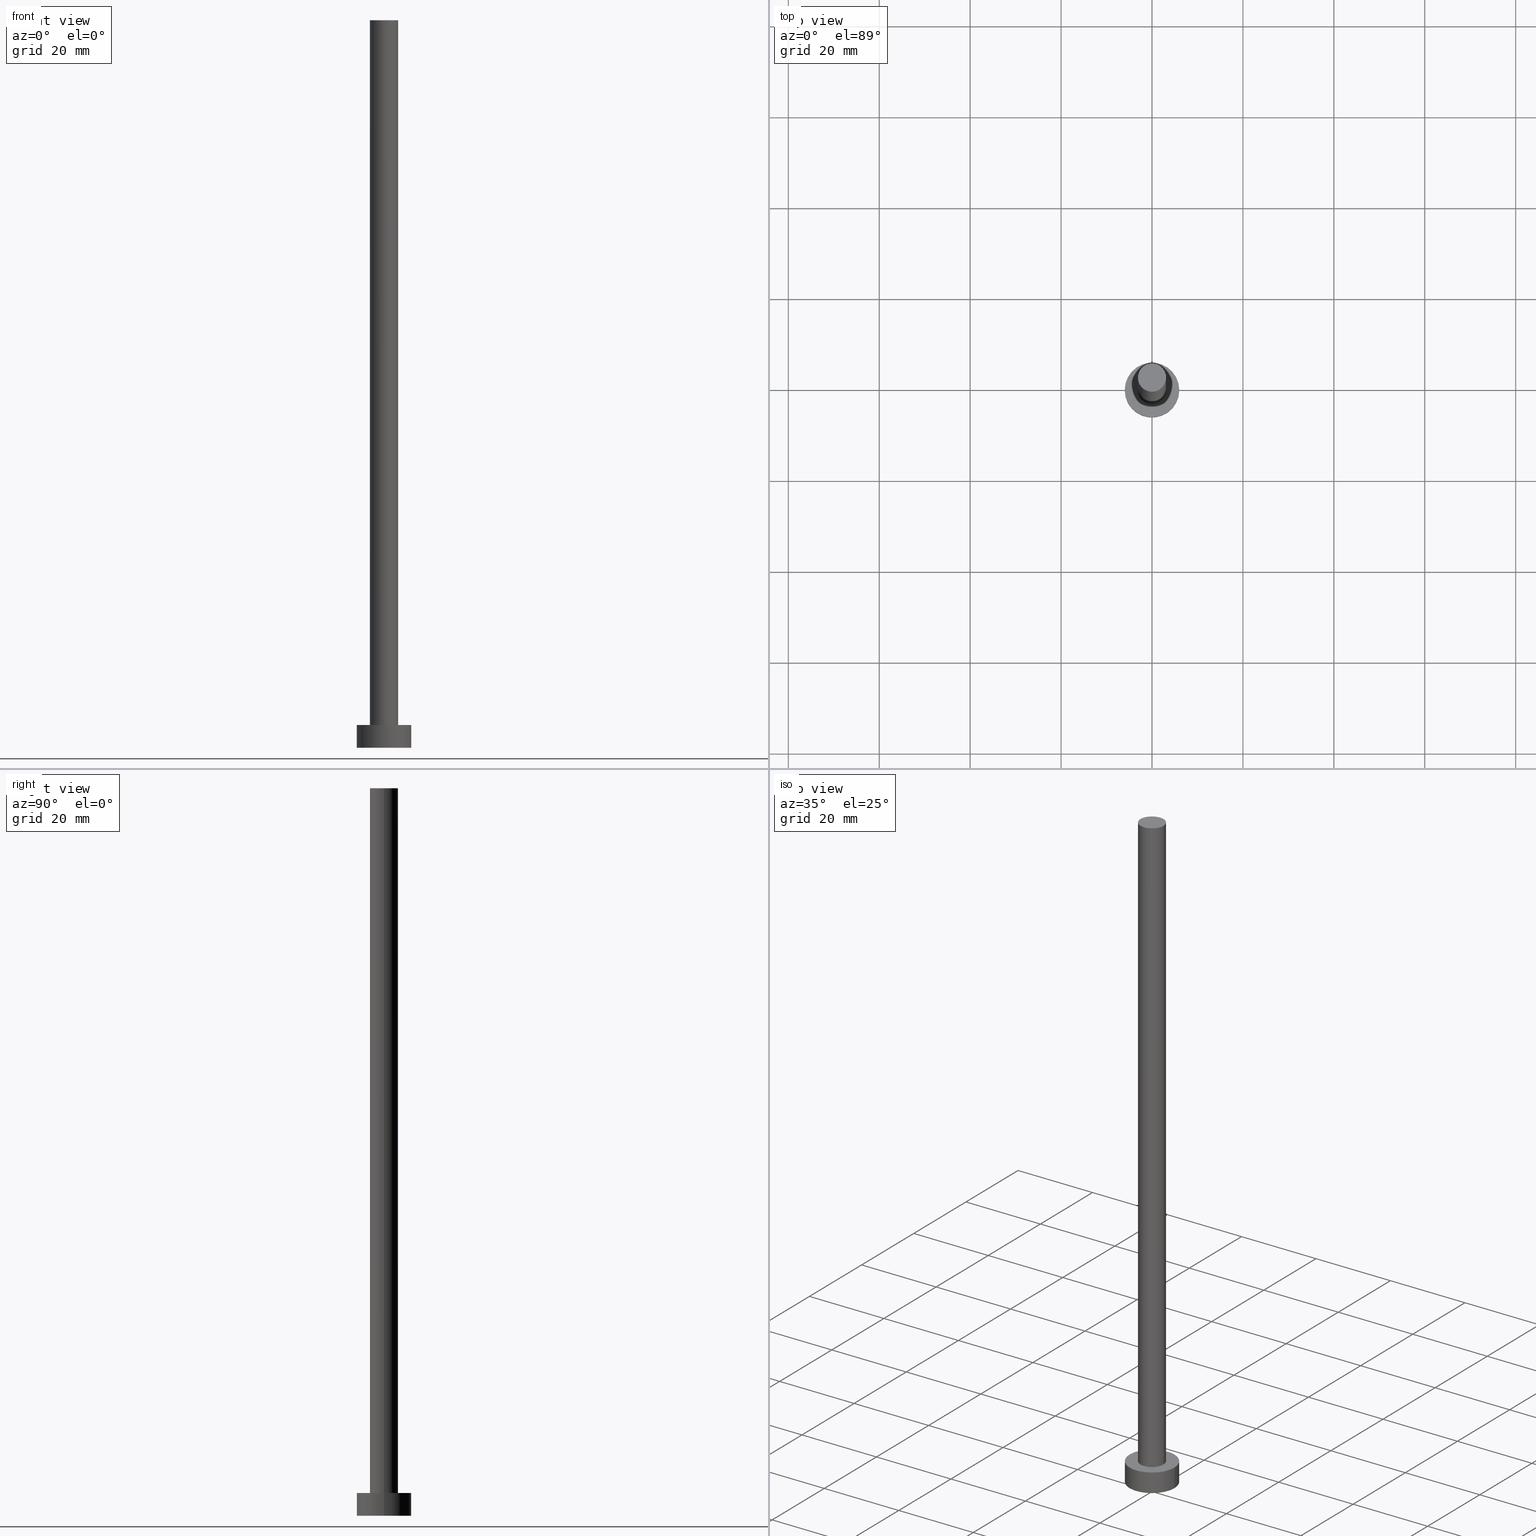
[diagram: canonical four-view strip — front | top / right | iso, engineering-drawing reading convention]
A machine part, canonical four-view strip (front | top / right | iso — engineering-drawing reading convention). The complete STEP part file that produces these views, byte-faithful:
ISO-10303-21;
HEADER;
FILE_DESCRIPTION (( 'STEP AP203' ),
    '1' );
FILE_NAME ('dda0.STEP',
    '2023-02-13T15:20:46',
    ( '' ),
    ( '' ),
    'SwSTEP 2.0',
    'SolidWorks 2019',
    '' );
FILE_SCHEMA (( 'CONFIG_CONTROL_DESIGN' ));
ENDSEC;

DATA;
#1 = APPROVAL_ROLE ( '' ) ;
#2 = PERSON_AND_ORGANIZATION ( #157, #62 ) ;
#3 = AXIS2_PLACEMENT_3D ( 'NONE', #29, #26, #70 ) ;
#4 = APPROVAL_ROLE ( '' ) ;
#5 = EDGE_CURVE ( 'NONE', #246, #133, #34, .T. ) ;
#6 =( GEOMETRIC_REPRESENTATION_CONTEXT ( 3 ) GLOBAL_UNCERTAINTY_ASSIGNED_CONTEXT ( ( #210 ) ) GLOBAL_UNIT_ASSIGNED_CONTEXT ( ( #18, #234, #36 ) ) REPRESENTATION_CONTEXT ( 'NONE', 'WORKASPACE' ) );
#7 = PRODUCT ( 'dda0', 'dda0', '', ( #94 ) ) ;
#8 = AXIS2_PLACEMENT_3D ( 'NONE', #66, #68, #9 ) ;
#9 = DIRECTION ( 'NONE',  ( 1.000000000000000000, 0.000000000000000000, -0.000000000000000000 ) ) ;
#10 = DIRECTION ( 'NONE',  ( 0.000000000000000000, 0.000000000000000000, 1.000000000000000000 ) ) ;
#11 = CARTESIAN_POINT ( 'NONE',  ( 6.000000000000000888, 7.347880794884120722E-16, 5.000000000000000000 ) ) ;
#12 = VERTEX_POINT ( 'NONE', #207 ) ;
#13 = AXIS2_PLACEMENT_3D ( 'NONE', #88, #173, #236 ) ;
#14 = DESIGN_CONTEXT ( 'detailed design', #79, 'design' ) ;
#15 = DIRECTION ( 'NONE',  ( 1.000000000000000000, 0.000000000000000000, 0.000000000000000000 ) ) ;
#16 = VERTEX_POINT ( 'NONE', #190 ) ;
#17 = CARTESIAN_POINT ( 'NONE',  ( 0.000000000000000000, 0.000000000000000000, 5.000000000000000000 ) ) ;
#18 =( LENGTH_UNIT ( ) NAMED_UNIT ( * ) SI_UNIT ( .MILLI., .METRE. ) );
#19 = ORIENTED_EDGE ( 'NONE', *, *, #39, .T. ) ;
#20 = APPROVAL_DATE_TIME ( #136, #220 ) ;
#21 = PERSON_AND_ORGANIZATION_ROLE ( 'classification_officer' ) ;
#22 = AXIS2_PLACEMENT_3D ( 'NONE', #31, #158, #24 ) ;
#23 = DATE_TIME_ROLE ( 'classification_date' ) ;
#24 = DIRECTION ( 'NONE',  ( -1.000000000000000000, 0.000000000000000000, 0.000000000000000000 ) ) ;
#25 = CIRCLE ( 'NONE', #144, 6.000000000000000888 ) ;
#26 = DIRECTION ( 'NONE',  ( 0.000000000000000000, 0.000000000000000000, 1.000000000000000000 ) ) ;
#27 = CARTESIAN_POINT ( 'NONE',  ( 0.000000000000000000, 0.000000000000000000, 160.0000000000000000 ) ) ;
#28 = ORIENTED_EDGE ( 'NONE', *, *, #44, .T. ) ;
#29 = CARTESIAN_POINT ( 'NONE',  ( 0.000000000000000000, 0.000000000000000000, 0.000000000000000000 ) ) ;
#30 = ORIENTED_EDGE ( 'NONE', *, *, #55, .T. ) ;
#31 = CARTESIAN_POINT ( 'NONE',  ( 0.000000000000000000, 0.000000000000000000, 160.0000000000000000 ) ) ;
#32 = ORIENTED_EDGE ( 'NONE', *, *, #84, .T. ) ;
#33 = FACE_OUTER_BOUND ( 'NONE', #233, .T. ) ;
#34 = LINE ( 'NONE', #128, #203 ) ;
#35 = PERSON_AND_ORGANIZATION ( #157, #62 ) ;
#36 =( NAMED_UNIT ( * ) SI_UNIT ( $, .STERADIAN. ) SOLID_ANGLE_UNIT ( ) );
#37 = PERSON_AND_ORGANIZATION ( #157, #62 ) ;
#38 = EDGE_CURVE ( 'NONE', #154, #246, #61, .T. ) ;
#39 = EDGE_CURVE ( 'NONE', #196, #176, #45, .T. ) ;
#40 = PRODUCT_DEFINITION_FORMATION_WITH_SPECIFIED_SOURCE ( 'LIBOVOLN�', '', #7, .NOT_KNOWN. ) ;
#41 = APPROVAL_ROLE ( '' ) ;
#42 = VECTOR ( 'NONE', #90, 1000.000000000000000 ) ;
#43 = COORDINATED_UNIVERSAL_TIME_OFFSET ( 1, 0, .AHEAD. ) ;
#44 = EDGE_CURVE ( 'NONE', #246, #154, #142, .T. ) ;
#45 = CIRCLE ( 'NONE', #183, 6.000000000000000888 ) ;
#46 = CARTESIAN_POINT ( 'NONE',  ( 0.000000000000000000, 0.000000000000000000, 5.000000000000000000 ) ) ;
#47 = LOCAL_TIME ( 16, 20, 46.00000000000000000, #56 ) ;
#48 = PLANE ( 'NONE',  #164 ) ;
#49 = ORIENTED_EDGE ( 'NONE', *, *, #44, .F. ) ;
#50 = PLANE ( 'NONE',  #209 ) ;
#51 = DIRECTION ( 'NONE',  ( -0.000000000000000000, -0.000000000000000000, -1.000000000000000000 ) ) ;
#52 = CYLINDRICAL_SURFACE ( 'NONE', #22, 3.100000000000000089 ) ;
#53 = EDGE_LOOP ( 'NONE', ( #250, #111, #212, #32 ) ) ;
#54 = DIRECTION ( 'NONE',  ( 0.000000000000000000, 0.000000000000000000, 1.000000000000000000 ) ) ;
#55 = EDGE_CURVE ( 'NONE', #176, #196, #64, .T. ) ;
#56 = COORDINATED_UNIVERSAL_TIME_OFFSET ( 1, 0, .AHEAD. ) ;
#57 = ORIENTED_EDGE ( 'NONE', *, *, #135, .F. ) ;
#58 = CALENDAR_DATE ( 2023, 13, 2 ) ;
#59 = CARTESIAN_POINT ( 'NONE',  ( 0.000000000000000000, 0.000000000000000000, 5.000000000000000000 ) ) ;
#60 = APPROVAL_DATE_TIME ( #134, #153 ) ;
#61 = CIRCLE ( 'NONE', #13, 3.100000000000000089 ) ;
#62 = ORGANIZATION ( 'NEUR�EN�', 'NEUR�EN�', '' ) ;
#63 = AXIS2_PLACEMENT_3D ( 'NONE', #17, #152, #191 ) ;
#64 = CIRCLE ( 'NONE', #238, 6.000000000000000888 ) ;
#65 = PRODUCT_DEFINITION_SHAPE ( 'NONE', 'NONE',  #147 ) ;
#66 = CARTESIAN_POINT ( 'NONE',  ( 0.000000000000000000, 0.000000000000000000, 160.0000000000000000 ) ) ;
#67 = CC_DESIGN_PERSON_AND_ORGANIZATION_ASSIGNMENT ( #117, #218, ( #147 ) ) ;
#68 = DIRECTION ( 'NONE',  ( 0.000000000000000000, 0.000000000000000000, 1.000000000000000000 ) ) ;
#69 = ORIENTED_EDGE ( 'NONE', *, *, #39, .F. ) ;
#70 = DIRECTION ( 'NONE',  ( 1.000000000000000000, 0.000000000000000000, 0.000000000000000000 ) ) ;
#71 = ORIENTED_EDGE ( 'NONE', *, *, #84, .F. ) ;
#72 = LINE ( 'NONE', #211, #82 ) ;
#73 = DIRECTION ( 'NONE',  ( -0.000000000000000000, -0.000000000000000000, -1.000000000000000000 ) ) ;
#74 = ORIENTED_EDGE ( 'NONE', *, *, #163, .F. ) ;
#75 = COORDINATED_UNIVERSAL_TIME_OFFSET ( 1, 0, .AHEAD. ) ;
#76 = DIRECTION ( 'NONE',  ( 0.000000000000000000, 0.000000000000000000, 1.000000000000000000 ) ) ;
#77 = CALENDAR_DATE ( 2023, 13, 2 ) ;
#78 = APPROVAL_STATUS ( 'not_yet_approved' ) ;
#79 = APPLICATION_CONTEXT ( 'configuration controlled 3d designs of mechanical parts and assemblies' ) ;
#80 = ADVANCED_FACE ( 'NONE', ( #143 ), #129, .T. ) ;
#81 = LOCAL_TIME ( 16, 20, 46.00000000000000000, #98 ) ;
#82 = VECTOR ( 'NONE', #175, 1000.000000000000000 ) ;
#83 = LINE ( 'NONE', #131, #42 ) ;
#84 = EDGE_CURVE ( 'NONE', #216, #16, #122, .T. ) ;
#85 = DIRECTION ( 'NONE',  ( 1.000000000000000000, 0.000000000000000000, 0.000000000000000000 ) ) ;
#86 = ORIENTED_EDGE ( 'NONE', *, *, #5, .F. ) ;
#87 = FACE_BOUND ( 'NONE', #179, .T. ) ;
#88 = CARTESIAN_POINT ( 'NONE',  ( 0.000000000000000000, 0.000000000000000000, 160.0000000000000000 ) ) ;
#89 = AXIS2_PLACEMENT_3D ( 'NONE', #255, #76, #192 ) ;
#90 = DIRECTION ( 'NONE',  ( -0.000000000000000000, -0.000000000000000000, -1.000000000000000000 ) ) ;
#91 = EDGE_LOOP ( 'NONE', ( #28, #171 ) ) ;
#92 = CARTESIAN_POINT ( 'NONE',  ( -3.100000000000000089, 0.000000000000000000, 5.000000000000000000 ) ) ;
#93 = ORIENTED_EDGE ( 'NONE', *, *, #201, .F. ) ;
#94 = MECHANICAL_CONTEXT ( 'NONE', #167, 'mechanical' ) ;
#95 = ADVANCED_FACE ( 'NONE', ( #168 ), #148, .T. ) ;
#96 = EDGE_LOOP ( 'NONE', ( #69, #155, #150, #107 ) ) ;
#97 = APPROVAL_STATUS ( 'not_yet_approved' ) ;
#98 = COORDINATED_UNIVERSAL_TIME_OFFSET ( 1, 0, .AHEAD. ) ;
#99 = CIRCLE ( 'NONE', #130, 3.100000000000000089 ) ;
#100 = PERSON_AND_ORGANIZATION_ROLE ( 'design_owner' ) ;
#101 = APPROVAL_PERSON_ORGANIZATION ( #2, #220, #41 ) ;
#102 = MANIFOLD_SOLID_BREP ( 'P�idat vysunut�m3', #223 ) ;
#103 = PRODUCT_RELATED_PRODUCT_CATEGORY ( 'detail', '', ( #7 ) ) ;
#104 = FACE_OUTER_BOUND ( 'NONE', #91, .T. ) ;
#105 = ADVANCED_FACE ( 'NONE', ( #104 ), #224, .T. ) ;
#106 = DIRECTION ( 'NONE',  ( 0.000000000000000000, 0.000000000000000000, 1.000000000000000000 ) ) ;
#107 = ORIENTED_EDGE ( 'NONE', *, *, #204, .F. ) ;
#108 = CARTESIAN_POINT ( 'NONE',  ( 0.000000000000000000, 0.000000000000000000, 5.000000000000000000 ) ) ;
#109 = EDGE_CURVE ( 'NONE', #154, #12, #83, .T. ) ;
#110 = DIRECTION ( 'NONE',  ( -0.000000000000000000, -0.000000000000000000, -1.000000000000000000 ) ) ;
#111 = ORIENTED_EDGE ( 'NONE', *, *, #55, .F. ) ;
#112 = AXIS2_PLACEMENT_3D ( 'NONE', #27, #73, #194 ) ;
#113 = DIRECTION ( 'NONE',  ( -1.000000000000000000, 0.000000000000000000, 0.000000000000000000 ) ) ;
#114 = ORIENTED_EDGE ( 'NONE', *, *, #5, .T. ) ;
#115 = CALENDAR_DATE ( 2023, 13, 2 ) ;
#116 = LOCAL_TIME ( 16, 20, 46.00000000000000000, #43 ) ;
#117 = PERSON_AND_ORGANIZATION ( #157, #62 ) ;
#118 = APPLICATION_PROTOCOL_DEFINITION ( 'international standard', 'config_control_design', 1994, #79 ) ;
#119 = CARTESIAN_POINT ( 'NONE',  ( -3.100000000000000089, 0.000000000000000000, 160.0000000000000000 ) ) ;
#120 = DATE_AND_TIME ( #121, #116 ) ;
#121 = CALENDAR_DATE ( 2023, 13, 2 ) ;
#122 = CIRCLE ( 'NONE', #3, 6.000000000000000888 ) ;
#123 = CC_DESIGN_PERSON_AND_ORGANIZATION_ASSIGNMENT ( #35, #21, ( #195 ) ) ;
#124 = CC_DESIGN_APPROVAL ( #153, ( #40 ) ) ;
#125 = EDGE_CURVE ( 'NONE', #196, #16, #232, .T. ) ;
#126 = CARTESIAN_POINT ( 'NONE',  ( 0.000000000000000000, 0.000000000000000000, 5.000000000000000000 ) ) ;
#127 = DIRECTION ( 'NONE',  ( 1.000000000000000000, 0.000000000000000000, -0.000000000000000000 ) ) ;
#128 = CARTESIAN_POINT ( 'NONE',  ( -3.100000000000000089, 0.000000000000000000, 160.0000000000000000 ) ) ;
#129 = CYLINDRICAL_SURFACE ( 'NONE', #112, 3.100000000000000089 ) ;
#130 = AXIS2_PLACEMENT_3D ( 'NONE', #245, #172, #248 ) ;
#131 = CARTESIAN_POINT ( 'NONE',  ( 3.100000000000000089, 3.796405077356794918E-16, 160.0000000000000000 ) ) ;
#132 = DIRECTION ( 'NONE',  ( 1.000000000000000000, 0.000000000000000000, -0.000000000000000000 ) ) ;
#133 = VERTEX_POINT ( 'NONE', #92 ) ;
#134 = DATE_AND_TIME ( #115, #240 ) ;
#135 = EDGE_CURVE ( 'NONE', #133, #12, #180, .T. ) ;
#136 = DATE_AND_TIME ( #58, #177 ) ;
#137 = CC_DESIGN_SECURITY_CLASSIFICATION ( #195, ( #40 ) ) ;
#138 = DIRECTION ( 'NONE',  ( 0.000000000000000000, 0.000000000000000000, 1.000000000000000000 ) ) ;
#139 = PERSON_AND_ORGANIZATION ( #157, #62 ) ;
#140 = ADVANCED_FACE ( 'NONE', ( #87, #33 ), #48, .T. ) ;
#141 = APPROVAL_STATUS ( 'not_yet_approved' ) ;
#142 = CIRCLE ( 'NONE', #89, 3.100000000000000089 ) ;
#143 = FACE_OUTER_BOUND ( 'NONE', #193, .T. ) ;
#144 = AXIS2_PLACEMENT_3D ( 'NONE', #228, #54, #15 ) ;
#145 = DIRECTION ( 'NONE',  ( -0.000000000000000000, -0.000000000000000000, -1.000000000000000000 ) ) ;
#146 = EDGE_LOOP ( 'NONE', ( #252, #231, #227, #86 ) ) ;
#147 = PRODUCT_DEFINITION ( 'NEZN�M�', '', #40, #14 ) ;
#148 = CYLINDRICAL_SURFACE ( 'NONE', #156, 6.000000000000000888 ) ;
#149 = CARTESIAN_POINT ( 'NONE',  ( -6.000000000000000888, 0.000000000000000000, 0.000000000000000000 ) ) ;
#150 = ORIENTED_EDGE ( 'NONE', *, *, #163, .T. ) ;
#151 = CC_DESIGN_APPROVAL ( #220, ( #147 ) ) ;
#152 = DIRECTION ( 'NONE',  ( 0.000000000000000000, 0.000000000000000000, 1.000000000000000000 ) ) ;
#153 = APPROVAL ( #97, 'NEUR�EN�' ) ;
#154 = VERTEX_POINT ( 'NONE', #206 ) ;
#155 = ORIENTED_EDGE ( 'NONE', *, *, #125, .T. ) ;
#156 = AXIS2_PLACEMENT_3D ( 'NONE', #46, #145, #187 ) ;
#157 = PERSON ( 'NEUR�EN�', 'NEUR�EN�', 'NEUR�EN�', ('NEUR�EN�'), ('NEUR�EN�'), ('NEUR�EN�') ) ;
#158 = DIRECTION ( 'NONE',  ( -0.000000000000000000, -0.000000000000000000, -1.000000000000000000 ) ) ;
#159 = DIRECTION ( 'NONE',  ( 1.000000000000000000, 0.000000000000000000, 0.000000000000000000 ) ) ;
#160 = DATE_AND_TIME ( #197, #47 ) ;
#161 = PERSON_AND_ORGANIZATION_ROLE ( 'creator' ) ;
#162 = DATE_TIME_ROLE ( 'creation_date' ) ;
#163 = EDGE_CURVE ( 'NONE', #16, #216, #25, .T. ) ;
#164 = AXIS2_PLACEMENT_3D ( 'NONE', #126, #226, #127 ) ;
#165 = CC_DESIGN_PERSON_AND_ORGANIZATION_ASSIGNMENT ( #253, #100, ( #7 ) ) ;
#166 = ADVANCED_FACE ( 'NONE', ( #205 ), #50, .F. ) ;
#167 = APPLICATION_CONTEXT ( 'configuration controlled 3d designs of mechanical parts and assemblies' ) ;
#168 = FACE_OUTER_BOUND ( 'NONE', #96, .T. ) ;
#169 = APPROVAL_PERSON_ORGANIZATION ( #239, #153, #1 ) ;
#170 = CARTESIAN_POINT ( 'NONE',  ( -6.000000000000000888, 0.000000000000000000, 5.000000000000000000 ) ) ;
#171 = ORIENTED_EDGE ( 'NONE', *, *, #38, .T. ) ;
#172 = DIRECTION ( 'NONE',  ( 0.000000000000000000, 0.000000000000000000, 1.000000000000000000 ) ) ;
#173 = DIRECTION ( 'NONE',  ( 0.000000000000000000, 0.000000000000000000, 1.000000000000000000 ) ) ;
#174 = CC_DESIGN_PERSON_AND_ORGANIZATION_ASSIGNMENT ( #37, #199, ( #40 ) ) ;
#175 = DIRECTION ( 'NONE',  ( -0.000000000000000000, -0.000000000000000000, -1.000000000000000000 ) ) ;
#176 = VERTEX_POINT ( 'NONE', #170 ) ;
#177 = LOCAL_TIME ( 16, 20, 46.00000000000000000, #75 ) ;
#178 = ADVANCED_FACE ( 'NONE', ( #213 ), #208, .T. ) ;
#179 = EDGE_LOOP ( 'NONE', ( #57, #93 ) ) ;
#180 = CIRCLE ( 'NONE', #63, 3.100000000000000089 ) ;
#181 = CARTESIAN_POINT ( 'NONE',  ( 0.000000000000000000, 0.000000000000000000, 0.000000000000000000 ) ) ;
#182 = PERSON_AND_ORGANIZATION ( #157, #62 ) ;
#183 = AXIS2_PLACEMENT_3D ( 'NONE', #59, #138, #159 ) ;
#184 = CC_DESIGN_PERSON_AND_ORGANIZATION_ASSIGNMENT ( #139, #161, ( #40 ) ) ;
#185 = APPROVAL_DATE_TIME ( #120, #247 ) ;
#186 = ADVANCED_BREP_SHAPE_REPRESENTATION ( 'dda0', ( #102, #222 ), #6 ) ;
#187 = DIRECTION ( 'NONE',  ( -1.000000000000000000, 0.000000000000000000, 0.000000000000000000 ) ) ;
#188 = CC_DESIGN_DATE_AND_TIME_ASSIGNMENT ( #200, #23, ( #195 ) ) ;
#189 = CARTESIAN_POINT ( 'NONE',  ( 0.000000000000000000, 0.000000000000000000, 0.000000000000000000 ) ) ;
#190 = CARTESIAN_POINT ( 'NONE',  ( 6.000000000000000888, 7.347880794884120722E-16, 0.000000000000000000 ) ) ;
#191 = DIRECTION ( 'NONE',  ( 1.000000000000000000, 0.000000000000000000, 0.000000000000000000 ) ) ;
#192 = DIRECTION ( 'NONE',  ( 1.000000000000000000, 0.000000000000000000, 0.000000000000000000 ) ) ;
#193 = EDGE_LOOP ( 'NONE', ( #229, #49, #114, #214 ) ) ;
#194 = DIRECTION ( 'NONE',  ( -1.000000000000000000, 0.000000000000000000, 0.000000000000000000 ) ) ;
#195 = SECURITY_CLASSIFICATION ( '', '', #215 ) ;
#196 = VERTEX_POINT ( 'NONE', #11 ) ;
#197 = CALENDAR_DATE ( 2023, 13, 2 ) ;
#198 = CC_DESIGN_DATE_AND_TIME_ASSIGNMENT ( #160, #162, ( #147 ) ) ;
#199 = PERSON_AND_ORGANIZATION_ROLE ( 'design_supplier' ) ;
#200 = DATE_AND_TIME ( #77, #81 ) ;
#201 = EDGE_CURVE ( 'NONE', #12, #133, #99, .T. ) ;
#202 = SHAPE_DEFINITION_REPRESENTATION ( #65, #186 ) ;
#203 = VECTOR ( 'NONE', #51, 1000.000000000000000 ) ;
#204 = EDGE_CURVE ( 'NONE', #176, #216, #72, .T. ) ;
#205 = FACE_OUTER_BOUND ( 'NONE', #235, .T. ) ;
#206 = CARTESIAN_POINT ( 'NONE',  ( 3.100000000000000089, 3.796405077356794918E-16, 160.0000000000000000 ) ) ;
#207 = CARTESIAN_POINT ( 'NONE',  ( 3.100000000000000089, 3.796405077356794918E-16, 5.000000000000000000 ) ) ;
#208 = CYLINDRICAL_SURFACE ( 'NONE', #241, 6.000000000000000888 ) ;
#209 = AXIS2_PLACEMENT_3D ( 'NONE', #189, #10, #132 ) ;
#210 = UNCERTAINTY_MEASURE_WITH_UNIT (LENGTH_MEASURE( 1.000000000000000082E-05 ), #18, 'distance_accuracy_value', 'NONE');
#211 = CARTESIAN_POINT ( 'NONE',  ( -6.000000000000000888, 0.000000000000000000, 5.000000000000000000 ) ) ;
#212 = ORIENTED_EDGE ( 'NONE', *, *, #204, .T. ) ;
#213 = FACE_OUTER_BOUND ( 'NONE', #53, .T. ) ;
#214 = ORIENTED_EDGE ( 'NONE', *, *, #135, .T. ) ;
#215 = SECURITY_CLASSIFICATION_LEVEL ( 'unclassified' ) ;
#216 = VERTEX_POINT ( 'NONE', #149 ) ;
#217 = CC_DESIGN_APPROVAL ( #247, ( #195 ) ) ;
#218 = PERSON_AND_ORGANIZATION_ROLE ( 'creator' ) ;
#219 = DIRECTION ( 'NONE',  ( 1.000000000000000000, 0.000000000000000000, 0.000000000000000000 ) ) ;
#220 = APPROVAL ( #78, 'NEUR�EN�' ) ;
#221 = APPLICATION_PROTOCOL_DEFINITION ( 'international standard', 'config_control_design', 1994, #167 ) ;
#222 = AXIS2_PLACEMENT_3D ( 'NONE', #181, #251, #219 ) ;
#223 = CLOSED_SHELL ( 'NONE', ( #242, #95, #178, #140, #166, #80, #105 ) ) ;
#224 = PLANE ( 'NONE',  #8 ) ;
#225 = APPROVAL_PERSON_ORGANIZATION ( #182, #247, #4 ) ;
#226 = DIRECTION ( 'NONE',  ( 0.000000000000000000, 0.000000000000000000, 1.000000000000000000 ) ) ;
#227 = ORIENTED_EDGE ( 'NONE', *, *, #201, .T. ) ;
#228 = CARTESIAN_POINT ( 'NONE',  ( 0.000000000000000000, 0.000000000000000000, 0.000000000000000000 ) ) ;
#229 = ORIENTED_EDGE ( 'NONE', *, *, #109, .F. ) ;
#230 = FACE_OUTER_BOUND ( 'NONE', #146, .T. ) ;
#231 = ORIENTED_EDGE ( 'NONE', *, *, #109, .T. ) ;
#232 = LINE ( 'NONE', #244, #254 ) ;
#233 = EDGE_LOOP ( 'NONE', ( #30, #19 ) ) ;
#234 =( NAMED_UNIT ( * ) PLANE_ANGLE_UNIT ( ) SI_UNIT ( $, .RADIAN. ) );
#235 = EDGE_LOOP ( 'NONE', ( #71, #74 ) ) ;
#236 = DIRECTION ( 'NONE',  ( 1.000000000000000000, 0.000000000000000000, 0.000000000000000000 ) ) ;
#237 = COORDINATED_UNIVERSAL_TIME_OFFSET ( 1, 0, .AHEAD. ) ;
#238 = AXIS2_PLACEMENT_3D ( 'NONE', #243, #106, #85 ) ;
#239 = PERSON_AND_ORGANIZATION ( #157, #62 ) ;
#240 = LOCAL_TIME ( 16, 20, 46.00000000000000000, #237 ) ;
#241 = AXIS2_PLACEMENT_3D ( 'NONE', #108, #249, #113 ) ;
#242 = ADVANCED_FACE ( 'NONE', ( #230 ), #52, .T. ) ;
#243 = CARTESIAN_POINT ( 'NONE',  ( 0.000000000000000000, 0.000000000000000000, 5.000000000000000000 ) ) ;
#244 = CARTESIAN_POINT ( 'NONE',  ( 6.000000000000000888, 7.347880794884120722E-16, 5.000000000000000000 ) ) ;
#245 = CARTESIAN_POINT ( 'NONE',  ( 0.000000000000000000, 0.000000000000000000, 5.000000000000000000 ) ) ;
#246 = VERTEX_POINT ( 'NONE', #119 ) ;
#247 = APPROVAL ( #141, 'NEUR�EN�' ) ;
#248 = DIRECTION ( 'NONE',  ( 1.000000000000000000, 0.000000000000000000, 0.000000000000000000 ) ) ;
#249 = DIRECTION ( 'NONE',  ( -0.000000000000000000, -0.000000000000000000, -1.000000000000000000 ) ) ;
#250 = ORIENTED_EDGE ( 'NONE', *, *, #125, .F. ) ;
#251 = DIRECTION ( 'NONE',  ( 0.000000000000000000, 0.000000000000000000, 1.000000000000000000 ) ) ;
#252 = ORIENTED_EDGE ( 'NONE', *, *, #38, .F. ) ;
#253 = PERSON_AND_ORGANIZATION ( #157, #62 ) ;
#254 = VECTOR ( 'NONE', #110, 1000.000000000000000 ) ;
#255 = CARTESIAN_POINT ( 'NONE',  ( 0.000000000000000000, 0.000000000000000000, 160.0000000000000000 ) ) ;
ENDSEC;
END-ISO-10303-21;
